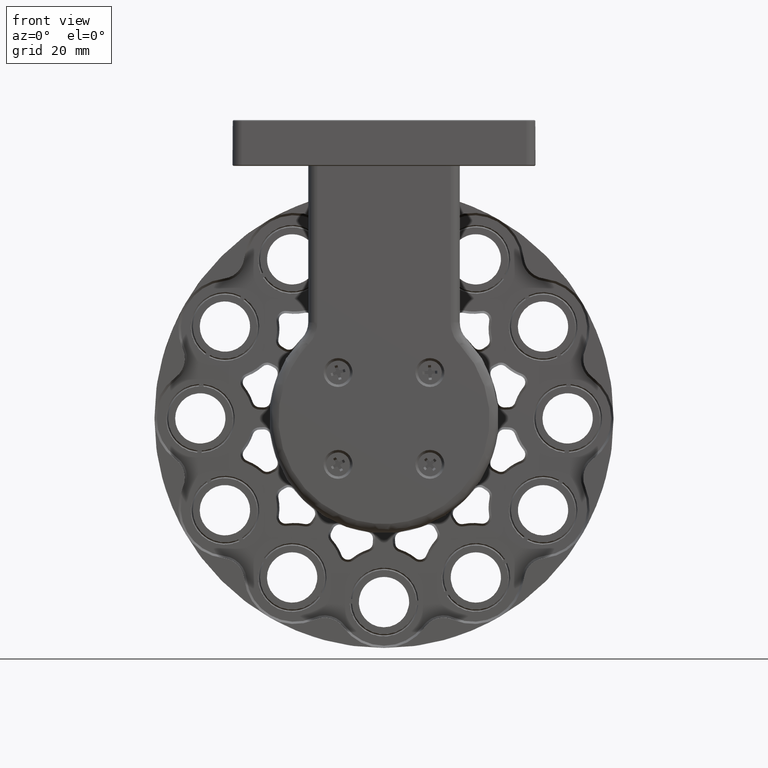
[diagram: clean part render]
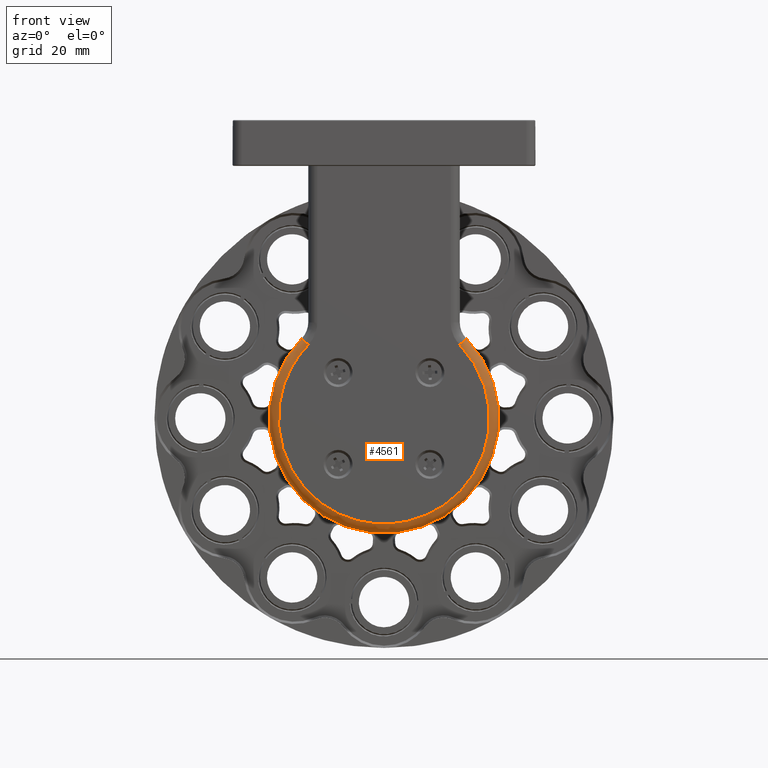
[diagram: same view with one face highlighted and labeled with its STEP entity id]
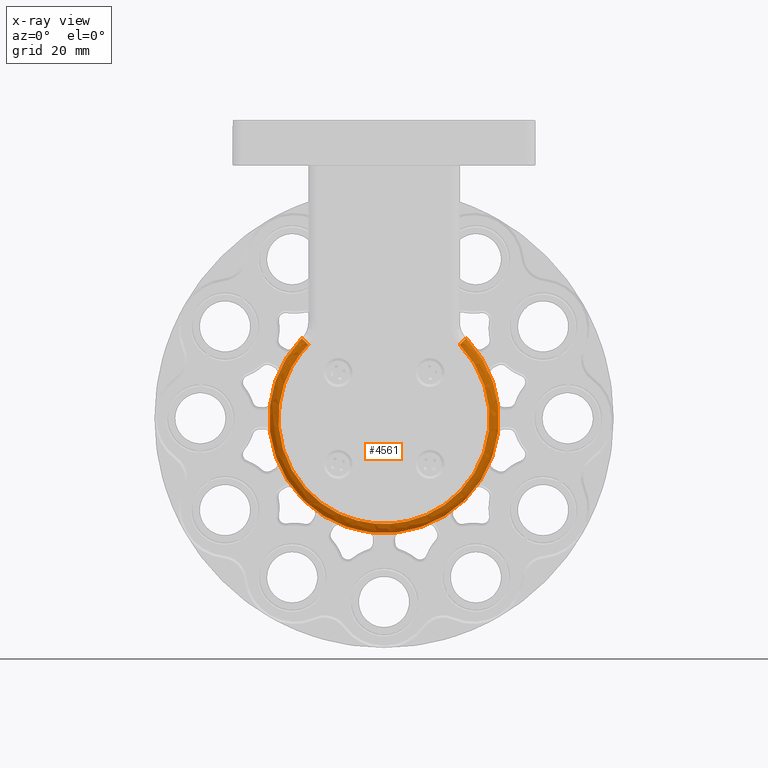
[diagram: x-ray of the same camera — body ghosted, the highlighted face saturated]
A machine part, front view. The second image highlights one B-rep face of the part: STEP entity #4561.
The next image is the same camera in x-ray: the body ghosted, the highlighted face saturated — about 0% of this face is hidden behind the body in this view.
In plain terms, the highlighted face is a freeform B-spline surface patch.
Its self-contained STEP definition (entity closure, byte-faithful):
#216 = EDGE_CURVE ( 'NONE', #24519, #12517, #8716, .T. ) ;
#723 = AXIS2_PLACEMENT_3D ( 'NONE', #28986, #6349, #22394 ) ;
#1553 = CARTESIAN_POINT ( 'NONE',  ( -54.02308018448366767, -7.585467660855186978, 68.86792572023824732 ) ) ;
#1853 = CARTESIAN_POINT ( 'NONE',  ( -35.95436094904707147, -6.413894785601367055, 87.43539662742306007 ) ) ;
#2392 = CARTESIAN_POINT ( 'NONE',  ( -18.03769428238040362, -6.413894785601367055, 69.99999999999998579 ) ) ;
#3345 = EDGE_CURVE ( 'NONE', #12517, #6549, #5556, .T. ) ;
#3608 =( BOUNDED_SURFACE ( )  B_SPLINE_SURFACE ( 3, 3, ( 
 ( #11014, #17891, #6077, #19705, #24665, #24822, #1853 ),
 ( #15669, #24522, #20165, #21963, #15065, #1553, #24372 ),
 ( #12950, #24223, #8306, #26925, #4104, #15214, #29312 ),
 ( #4256, #8755, #22116, #10713, #3950, #26771, #26618 ) ),
 .UNSPECIFIED., .F., .F., .F. ) 
 B_SPLINE_SURFACE_WITH_KNOTS ( ( 4, 4 ),
 ( 4, 3, 4 ),
 ( 0.000000000000000000, 1.000000000000000000 ),
 ( 0.000000000000000000, 0.5000000000000000000, 1.000000000000000000 ),
 .UNSPECIFIED. ) 
 GEOMETRIC_REPRESENTATION_ITEM ( )  RATIONAL_B_SPLINE_SURFACE ( (
 ( 1.000000000000000000, 0.5926418732377309873, 0.5926418732377309873, 1.000000000000000000, 0.5926418732377309873, 0.5926418732377309873, 1.000000000000000000),
 ( 0.8047378541243622729, 0.4769213493335739407, 0.4769213493335739407, 0.8047378541243622729, 0.4769213493335739407, 0.4769213493335739407, 0.8047378541243622729),
 ( 0.8047378541243622729, 0.4769213493335739407, 0.4769213493335739407, 0.8047378541243622729, 0.4769213493335739407, 0.4769213493335739407, 0.8047378541243622729),
 ( 1.000000000000000000, 0.5926418732377309873, 0.5926418732377309873, 1.000000000000000000, 0.5926418732377309873, 0.5926418732377309873, 1.000000000000000000) ) ) 
 REPRESENTATION_ITEM ( '' )  SURFACE ( )  );
#3950 = CARTESIAN_POINT ( 'NONE',  ( -41.87314530741760166, -8.413894785601366166, 47.00000000000001421 ) ) ;
#4104 = CARTESIAN_POINT ( 'NONE',  ( -43.08727434612954710, -8.413894785601380377, 45.82842712474617741 ) ) ;
#4256 = CARTESIAN_POINT ( 'NONE',  ( -1.554360949047083551, -8.413894785601366166, 86.04056489722918855 ) ) ;
#4561 = ADVANCED_FACE ( 'NONE', ( #18038 ), #3608, .T. ) ;
#5556 =( BOUNDED_CURVE ( )  B_SPLINE_CURVE ( 3, ( #29365, #6130, #8357, #26372, #15420, #21872, #26673 ),
 .UNSPECIFIED., .F., .F. ) 
 B_SPLINE_CURVE_WITH_KNOTS ( ( 4, 3, 4 ),
 ( 0.000000000000000000, 0.5000000000000000000, 1.000000000000000000 ),
 .UNSPECIFIED. ) 
 CURVE ( )  GEOMETRIC_REPRESENTATION_ITEM ( )  RATIONAL_B_SPLINE_CURVE ( ( 1.000000000000000000, 0.5926418732377309873, 0.5926418732377309873, 1.000000000000000000, 0.5926418732377309873, 0.5926418732377309873, 1.000000000000000000 ) ) 
 REPRESENTATION_ITEM ( '' )  );
#6077 = CARTESIAN_POINT ( 'NONE',  ( 7.870404657877456245, -6.413894785601367055, 44.99999999999999289 ) ) ;
#6130 = CARTESIAN_POINT ( 'NONE',  ( 15.06886074755455596, -8.413894785601366166, 68.95849166261918128 ) ) ;
#6349 = DIRECTION ( 'NONE',  ( -0.6974158650969223272, -0.000000000000000000, -0.7166666666666668961 ) ) ;
#6549 = VERTEX_POINT ( 'NONE', #21805 ) ;
#6912 = ORIENTED_EDGE ( 'NONE', *, *, #3345, .T. ) ;
#8306 = CARTESIAN_POINT ( 'NONE',  ( 7.011885781368738968, -8.413894785601380377, 45.82842712474618452 ) ) ;
#8357 = CARTESIAN_POINT ( 'NONE',  ( 5.797756742656788198, -8.413894785601366166, 47.00000000000000711 ) ) ;
#8655 = CIRCLE ( 'NONE', #17262, 25.00000000000000711 ) ;
#8716 = CIRCLE ( 'NONE', #11112, 2.000000000000002665 ) ;
#8755 = CARTESIAN_POINT ( 'NONE',  ( 15.06886074755456484, -8.413894785601366166, 68.95849166261919549 ) ) ;
#9185 = CARTESIAN_POINT ( 'NONE',  ( -0.1210276157137304409, -6.413894785601367055, 87.43539662742306007 ) ) ;
#10713 = CARTESIAN_POINT ( 'NONE',  ( -18.03769428238040362, -8.413894785601366166, 47.00000000000001421 ) ) ;
#11014 = CARTESIAN_POINT ( 'NONE',  ( -0.1210276157137344516, -6.413894785601367055, 87.43539662742306007 ) ) ;
#11112 = AXIS2_PLACEMENT_3D ( 'NONE', #13461, #29074, #22623 ) ;
#12517 = VERTEX_POINT ( 'NONE', #24701 ) ;
#12950 = CARTESIAN_POINT ( 'NONE',  ( -0.7147337217818459099, -8.413894785601378601, 86.85763840754842136 ) ) ;
#13461 = CARTESIAN_POINT ( 'NONE',  ( -1.554360949047067786, -6.413894785601367055, 86.04056489722920276 ) ) ;
#14089 = DIRECTION ( 'NONE',  ( 0.000000000000000000, 1.000000000000000000, 0.000000000000000000 ) ) ;
#15065 = CARTESIAN_POINT ( 'NONE',  ( -43.94579322263825816, -7.585467660855186978, 44.99999999999999289 ) ) ;
#15214 = CARTESIAN_POINT ( 'NONE',  ( -52.83062939345320075, -8.413894785601380377, 68.90543936186152507 ) ) ;
#15420 = CARTESIAN_POINT ( 'NONE',  ( -41.87314530741760876, -8.413894785601366166, 47.00000000000002132 ) ) ;
#15669 = CARTESIAN_POINT ( 'NONE',  ( -0.1210276157137344655, -7.585467660855187866, 87.43539662742304586 ) ) ;
#15973 = ORIENTED_EDGE ( 'NONE', *, *, #22707, .F. ) ;
#17174 = VERTEX_POINT ( 'NONE', #27319 ) ;
#17262 = AXIS2_PLACEMENT_3D ( 'NONE', #2392, #14089, #28057 ) ;
#17891 = CARTESIAN_POINT ( 'NONE',  ( 17.94769161972285687, -6.413894785601367055, 68.86792572023826153 ) ) ;
#18038 = FACE_OUTER_BOUND ( 'NONE', #24692, .T. ) ;
#18436 = CIRCLE ( 'NONE', #723, 2.000000000000003553 ) ;
#19705 = CARTESIAN_POINT ( 'NONE',  ( -18.03769428238040362, -6.413894785601367055, 44.99999999999999289 ) ) ;
#20165 = CARTESIAN_POINT ( 'NONE',  ( 7.870404657877455357, -7.585467660855186978, 44.99999999999999289 ) ) ;
#21805 = CARTESIAN_POINT ( 'NONE',  ( -34.52102761571374145, -8.413894785601366166, 86.04056489722921697 ) ) ;
#21872 = CARTESIAN_POINT ( 'NONE',  ( -51.14424931231536675, -8.413894785601366166, 68.95849166261919549 ) ) ;
#21963 = CARTESIAN_POINT ( 'NONE',  ( -18.03769428238040362, -7.585467660855187866, 44.99999999999998579 ) ) ;
#22116 = CARTESIAN_POINT ( 'NONE',  ( 5.797756742656802409, -8.413894785601366166, 47.00000000000001421 ) ) ;
#22394 = DIRECTION ( 'NONE',  ( -0.7166666666666663410, 0.000000000000000000, 0.6974158650969232154 ) ) ;
#22452 = ORIENTED_EDGE ( 'NONE', *, *, #216, .T. ) ;
#22623 = DIRECTION ( 'NONE',  ( 0.7166666666666656749, 0.000000000000000000, 0.6974158650969235484 ) ) ;
#22707 = EDGE_CURVE ( 'NONE', #24519, #17174, #8655, .T. ) ;
#24223 = CARTESIAN_POINT ( 'NONE',  ( 16.75524082869238285, -8.413894785601380377, 68.90543936186153928 ) ) ;
#24372 = CARTESIAN_POINT ( 'NONE',  ( -35.95436094904707147, -7.585467660855187866, 87.43539662742304586 ) ) ;
#24519 = VERTEX_POINT ( 'NONE', #9185 ) ;
#24522 = CARTESIAN_POINT ( 'NONE',  ( 17.94769161972286042, -7.585467660855186978, 68.86792572023824732 ) ) ;
#24665 = CARTESIAN_POINT ( 'NONE',  ( -43.94579322263826526, -6.413894785601367055, 44.99999999999999289 ) ) ;
#24692 = EDGE_LOOP ( 'NONE', ( #22452, #6912, #26093, #15973 ) ) ;
#24701 = CARTESIAN_POINT ( 'NONE',  ( -1.554360949047072005, -8.413894785601366166, 86.04056489722920276 ) ) ;
#24822 = CARTESIAN_POINT ( 'NONE',  ( -54.02308018448366767, -6.413894785601367055, 68.86792572023826153 ) ) ;
#26093 = ORIENTED_EDGE ( 'NONE', *, *, #26959, .T. ) ;
#26372 = CARTESIAN_POINT ( 'NONE',  ( -18.03769428238041073, -8.413894785601366166, 47.00000000000001421 ) ) ;
#26618 = CARTESIAN_POINT ( 'NONE',  ( -34.52102761571372724, -8.413894785601366166, 86.04056489722918855 ) ) ;
#26673 = CARTESIAN_POINT ( 'NONE',  ( -34.52102761571374145, -8.413894785601366166, 86.04056489722921697 ) ) ;
#26771 = CARTESIAN_POINT ( 'NONE',  ( -51.14424931231537386, -8.413894785601366166, 68.95849166261919549 ) ) ;
#26925 = CARTESIAN_POINT ( 'NONE',  ( -18.03769428238040362, -8.413894785601378601, 45.82842712474618452 ) ) ;
#26959 = EDGE_CURVE ( 'NONE', #6549, #17174, #18436, .T. ) ;
#27319 = CARTESIAN_POINT ( 'NONE',  ( -35.95436094904707147, -6.413894785601367055, 87.43539662742306007 ) ) ;
#28057 = DIRECTION ( 'NONE',  ( 0.000000000000000000, 0.000000000000000000, 1.000000000000000000 ) ) ;
#28986 = CARTESIAN_POINT ( 'NONE',  ( -34.52102761571373435, -6.413894785601367055, 86.04056489722920276 ) ) ;
#29074 = DIRECTION ( 'NONE',  ( 0.6974158650969225492, 0.000000000000000000, -0.7166666666666666741 ) ) ;
#29312 = CARTESIAN_POINT ( 'NONE',  ( -35.36065484297896688, -8.413894785601378601, 86.85763840754842136 ) ) ;
#29365 = CARTESIAN_POINT ( 'NONE',  ( -1.554360949047072005, -8.413894785601366166, 86.04056489722920276 ) ) ;